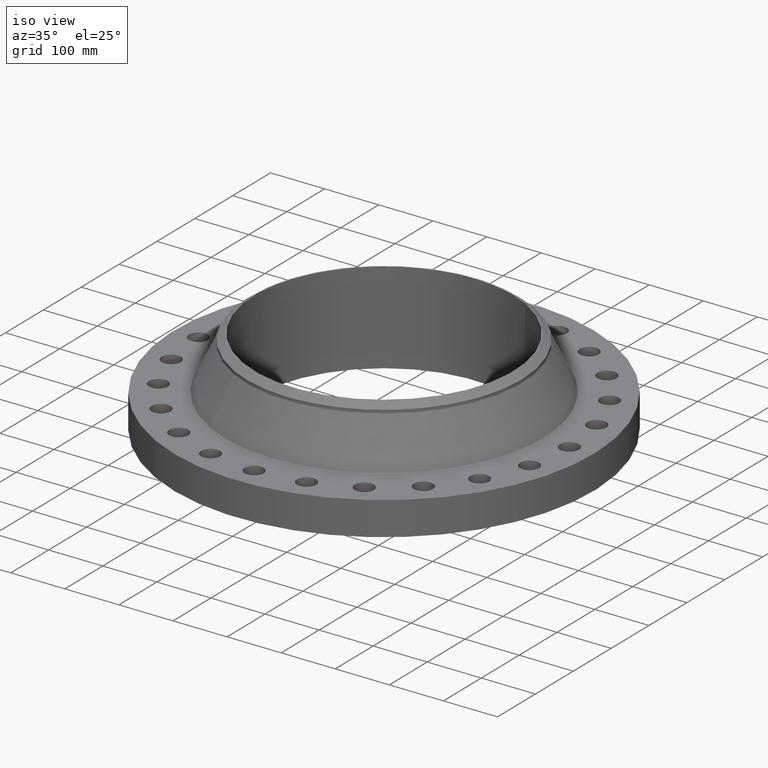
[diagram: clean part render]
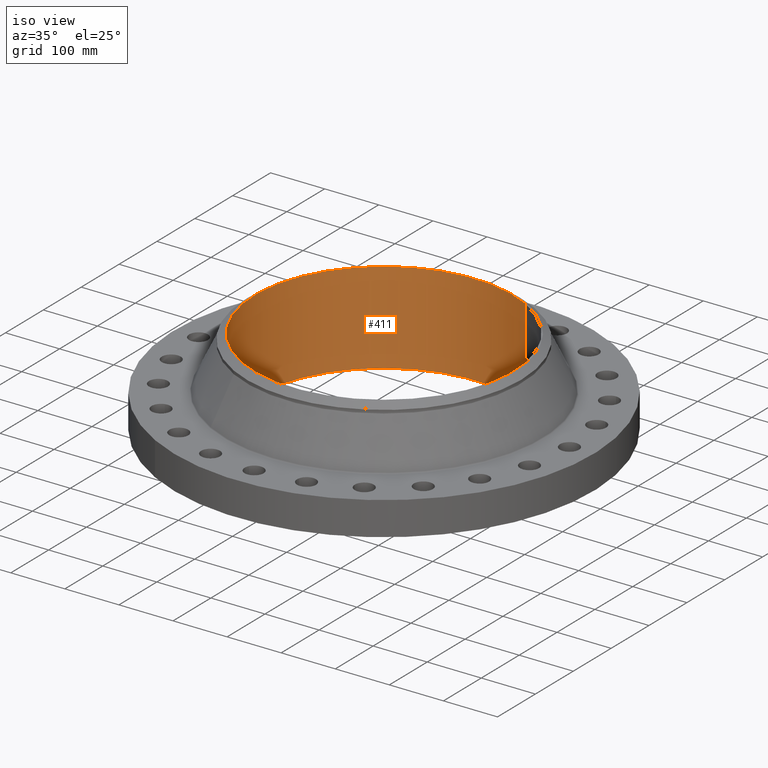
[diagram: tour spotlight — one face highlighted and labeled with its STEP entity id]
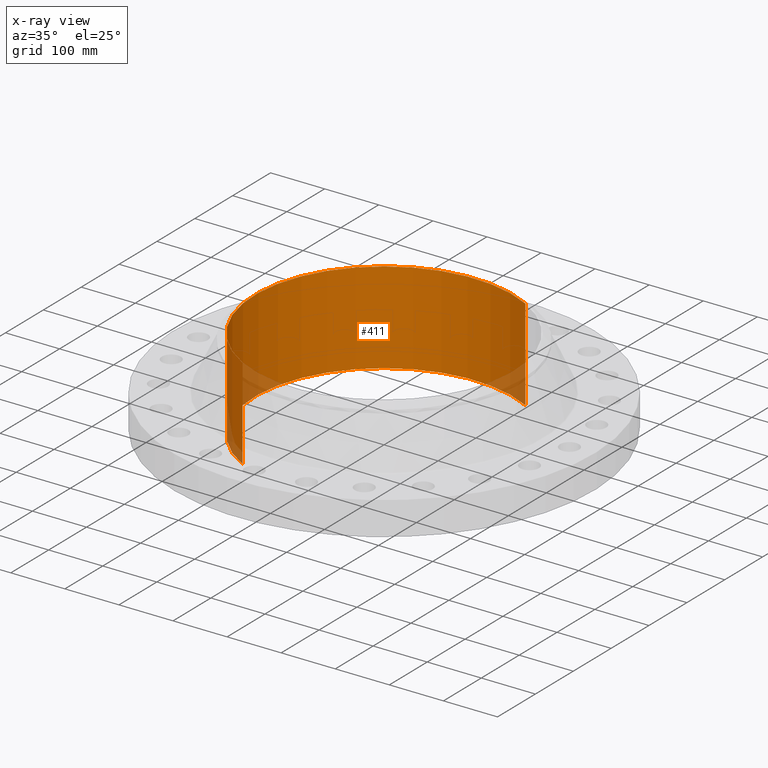
[diagram: x-ray of the same camera — body ghosted, this tour face saturated]
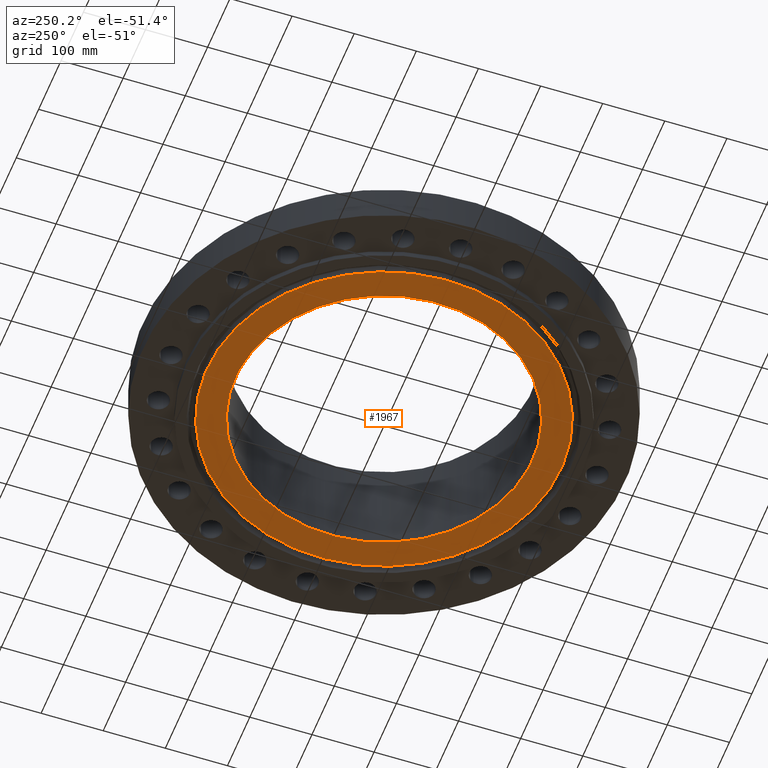
[diagram: tour spotlight — one face highlighted and labeled with its STEP entity id]
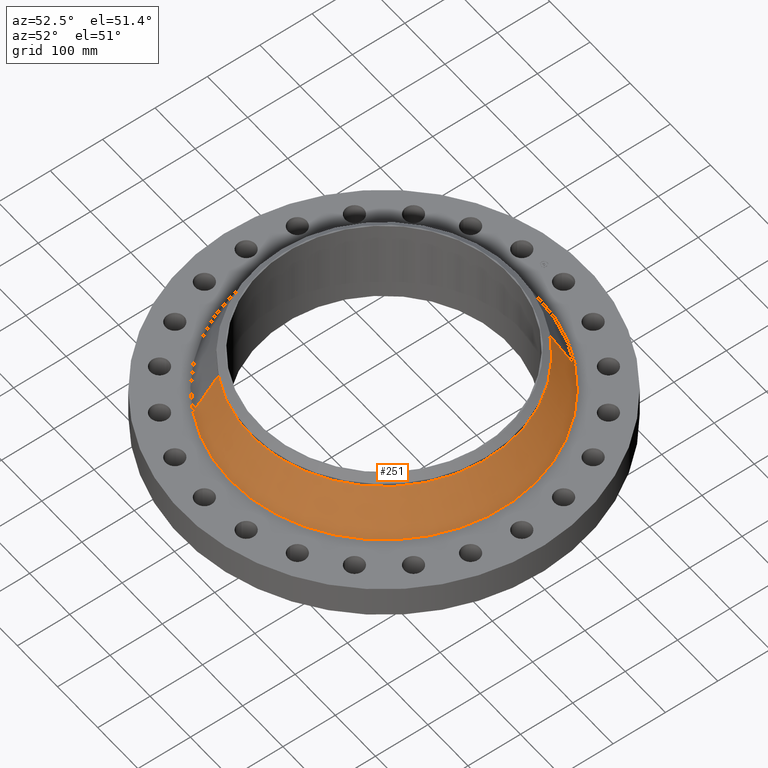
[diagram: tour spotlight — one face highlighted and labeled with its STEP entity id]
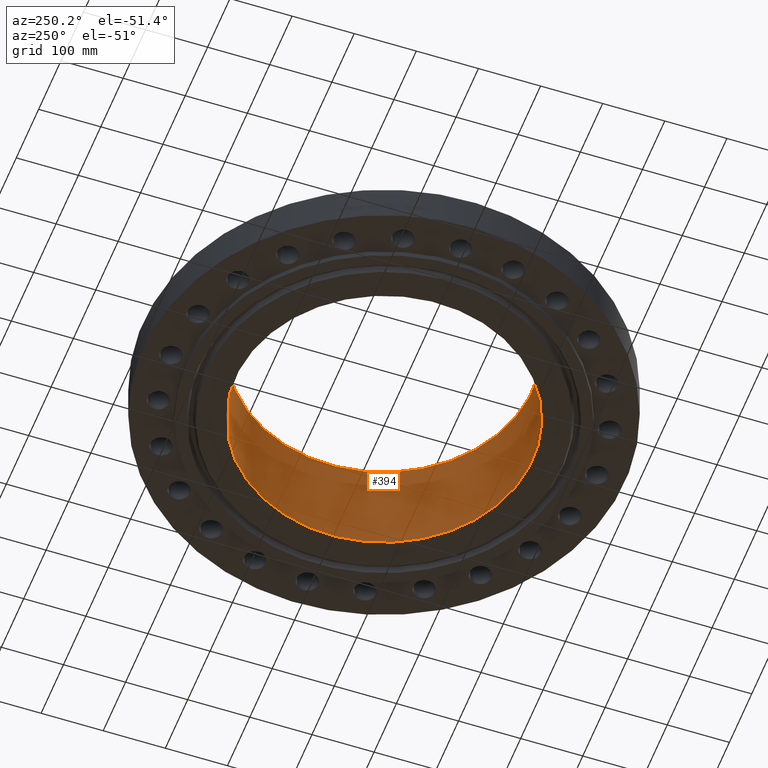
[diagram: tour spotlight — one face highlighted and labeled with its STEP entity id]
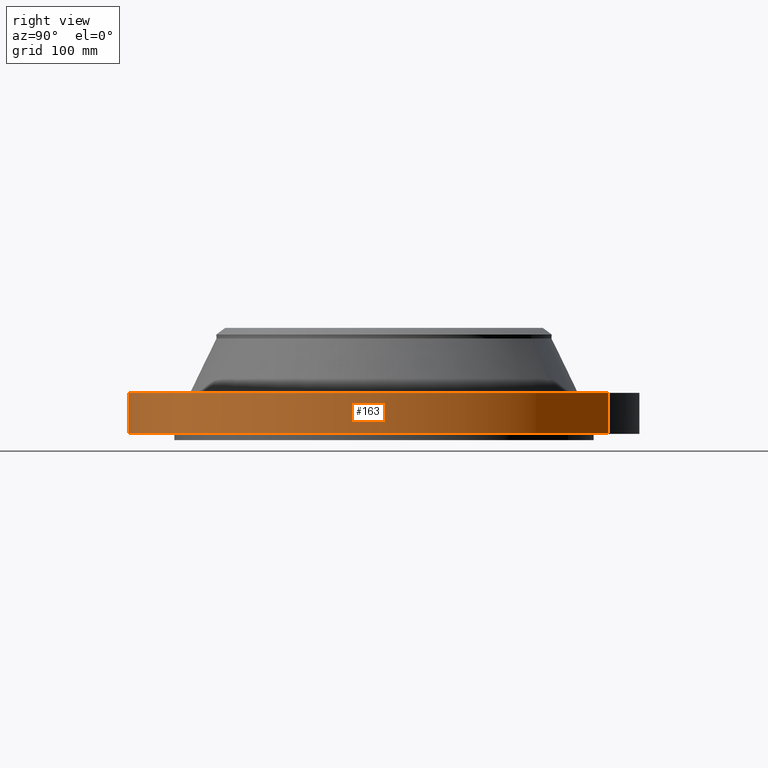
[diagram: tour spotlight — one face highlighted and labeled with its STEP entity id]
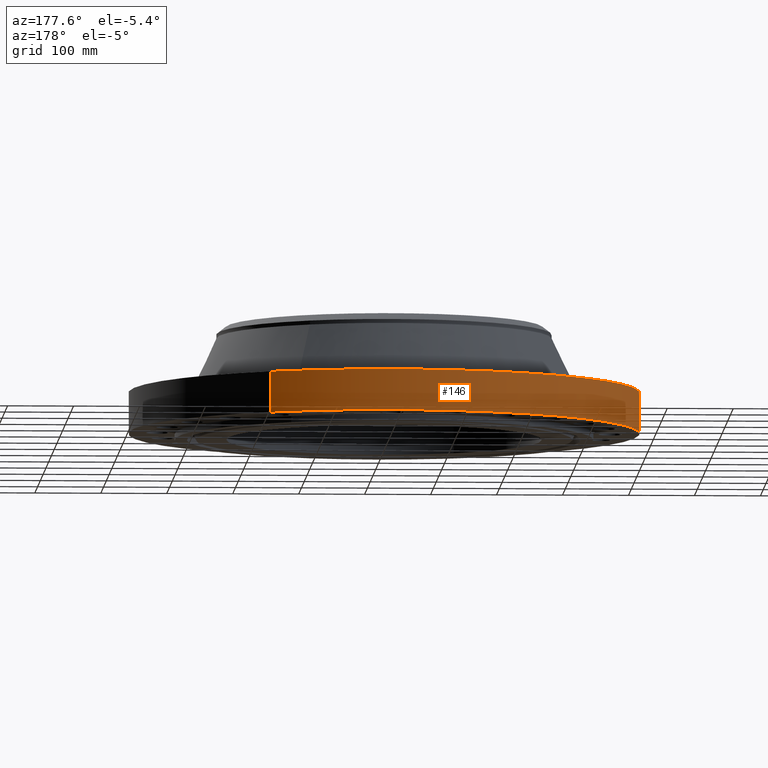
[diagram: tour spotlight — one face highlighted and labeled with its STEP entity id]
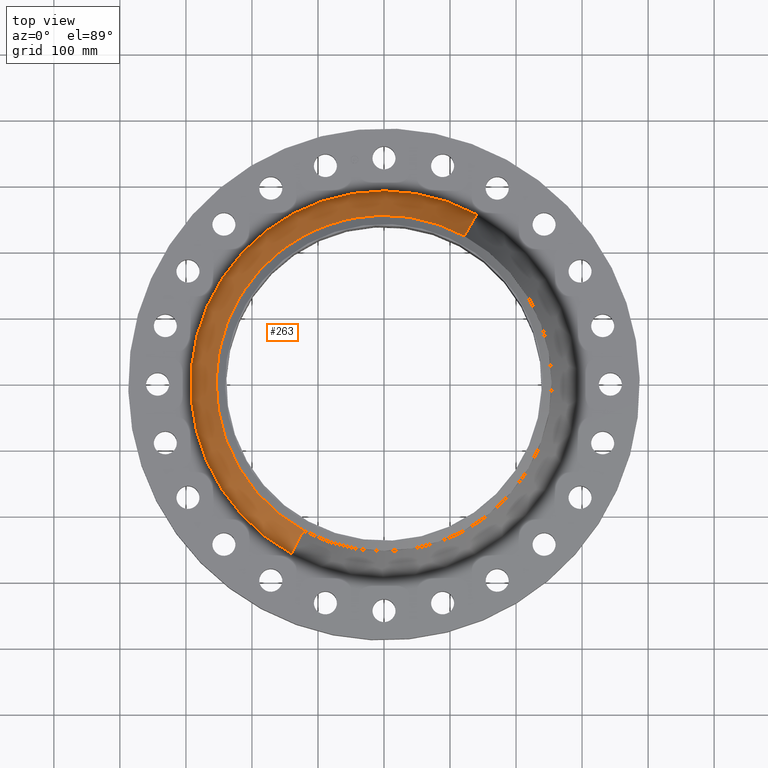
[diagram: tour spotlight — one face highlighted and labeled with its STEP entity id]
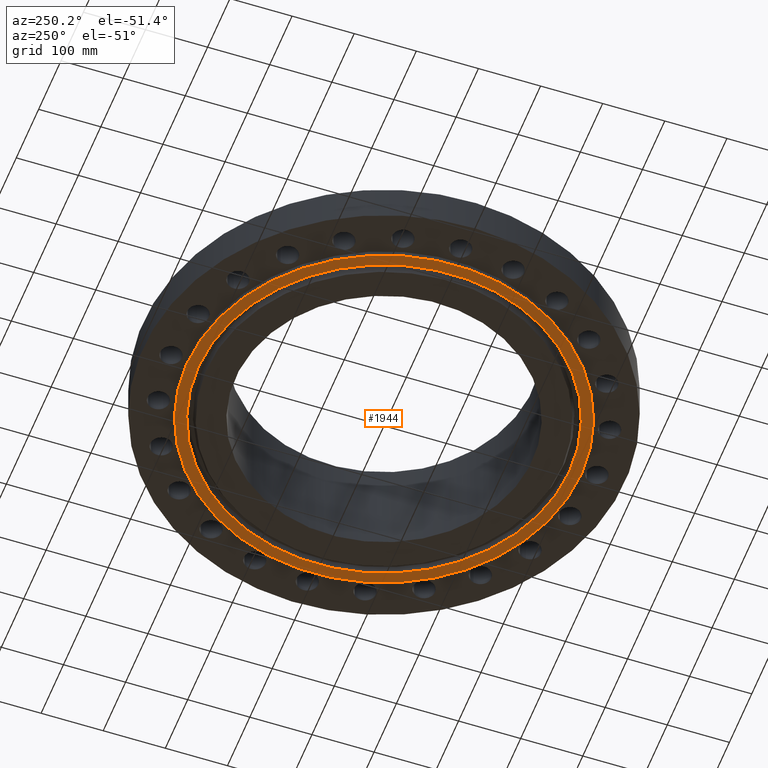
[diagram: tour spotlight — one face highlighted and labeled with its STEP entity id]
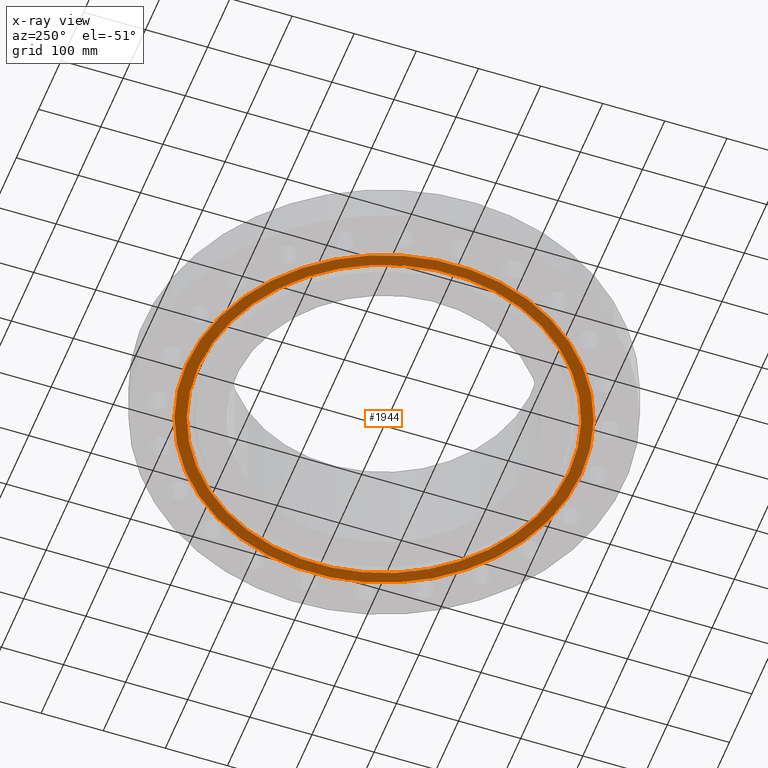
[diagram: x-ray of the same camera — body ghosted, this tour face saturated]
A machine part: a face-by-face anatomy tour. The part has 461 B-rep faces; the first image is the clean iso view, then the 8 largest visible faces are spotlighted one at a time (largest first), each with its STEP entity span.

Face 1 — iso view, entity #411. An x-ray twin of the same camera follows (body ghosted, this face saturated) — the face is partly hidden behind the body. In plain terms, the highlighted cylindrical surface (partial cylindrical patch) has radius 238.912 mm, axis along (0, 0, -1).
Definition (entity closure, byte-faithful):
#358=AXIS2_PLACEMENT_3D('Cylinder Axis2P3D',#355,#356,#357) ;
#397=AXIS2_PLACEMENT_3D('Circle Axis2P3D',#395,#396,$) ;
#402=AXIS2_PLACEMENT_3D('Circle Axis2P3D',#400,#401,$) ;
#355=CARTESIAN_POINT('Axis2P3D Location',(0.,0.,2.97250000001)) ;
#364=CARTESIAN_POINT('Vertex',(4.50947661613,8.25454157717,6.32000000003)) ;
#366=CARTESIAN_POINT('Vertex',(-4.50947661613,-8.25454157717,6.32000000003)) ;
#369=CARTESIAN_POINT('Line Origine',(4.50947661613,8.25454157717,2.97250000001)) ;
#373=CARTESIAN_POINT('Vertex',(4.50947661613,8.25454157717,-0.375000000002)) ;
#380=CARTESIAN_POINT('Vertex',(-4.50947661613,-8.25454157717,-0.375000000002)) ;
#383=CARTESIAN_POINT('Line Origine',(-4.50947661613,-8.25454157717,2.97250000001)) ;
#395=CARTESIAN_POINT('Axis2P3D Location',(0.,0.,6.32000000003)) ;
#400=CARTESIAN_POINT('Axis2P3D Location',(0.,0.,-0.375000000002)) ;
#356=DIRECTION('Axis2P3D Direction',(0.,0.,-0.0393700787402)) ;
#357=DIRECTION('Axis2P3D XDirection',(-0.0188750212049,-0.0345504945626,0.)) ;
#370=DIRECTION('Vector Direction',(0.,0.,-0.0393700787402)) ;
#384=DIRECTION('Vector Direction',(0.,0.,-0.0393700787402)) ;
#396=DIRECTION('Axis2P3D Direction',(0.,0.,-0.0393700787402)) ;
#401=DIRECTION('Axis2P3D Direction',(0.,0.,-0.0393700787402)) ;
#371=VECTOR('Line Direction',#370,0.0393700787402) ;
#385=VECTOR('Line Direction',#384,0.0393700787402) ;
#406=ORIENTED_EDGE('',*,*,#399,.F.) ;
#407=ORIENTED_EDGE('',*,*,#387,.T.) ;
#408=ORIENTED_EDGE('',*,*,#404,.T.) ;
#409=ORIENTED_EDGE('',*,*,#375,.F.) ;
#411=ADVANCED_FACE('PartBody',(#410),#359,.F.) ;
#398=CIRCLE('generated circle',#397,9.40600000004) ;
#403=CIRCLE('generated circle',#402,9.40600000004) ;
#359=CYLINDRICAL_SURFACE('generated cylinder',#358,9.40600000004) ;
#375=EDGE_CURVE('',#365,#374,#372,.T.) ;
#387=EDGE_CURVE('',#367,#381,#386,.T.) ;
#399=EDGE_CURVE('',#367,#365,#398,.T.) ;
#404=EDGE_CURVE('',#381,#374,#403,.T.) ;
#405=EDGE_LOOP('',(#406,#407,#408,#409)) ;
#410=FACE_OUTER_BOUND('',#405,.T.) ;
#372=LINE('Line',#369,#371) ;
#386=LINE('Line',#383,#385) ;
#365=VERTEX_POINT('',#364) ;
#367=VERTEX_POINT('',#366) ;
#374=VERTEX_POINT('',#373) ;
#381=VERTEX_POINT('',#380) ;

Face 2 — auxiliary view, entity #1967. In plain terms, the highlighted planar face has unit normal (0, 0, -1).
Definition (entity closure, byte-faithful):
#378=AXIS2_PLACEMENT_3D('Circle Axis2P3D',#376,#377,$) ;
#402=AXIS2_PLACEMENT_3D('Circle Axis2P3D',#400,#401,$) ;
#1920=AXIS2_PLACEMENT_3D('Plane Axis2P3D',#1917,#1918,#1919) ;
#1947=AXIS2_PLACEMENT_3D('Circle Axis2P3D',#1945,#1946,$) ;
#1956=AXIS2_PLACEMENT_3D('Circle Axis2P3D',#1954,#1955,$) ;
#373=CARTESIAN_POINT('Vertex',(4.50947661613,8.25454157717,-0.375000000002)) ;
#376=CARTESIAN_POINT('Axis2P3D Location',(0.,0.,-0.375000000002)) ;
#380=CARTESIAN_POINT('Vertex',(-4.50947661613,-8.25454157717,-0.375000000002)) ;
#400=CARTESIAN_POINT('Axis2P3D Location',(0.,0.,-0.375000000002)) ;
#1917=CARTESIAN_POINT('Axis2P3D Location',(0.,9.40600000004,-0.375000000001)) ;
#1945=CARTESIAN_POINT('Axis2P3D Location',(0.,0.,-0.375000000001)) ;
#1949=CARTESIAN_POINT('Vertex',(-5.38610621347,9.8592012916,-0.375000000001)) ;
#1951=CARTESIAN_POINT('Vertex',(5.38610621347,-9.8592012916,-0.375000000001)) ;
#1954=CARTESIAN_POINT('Axis2P3D Location',(0.,1.1189649382E-015,-0.375000000001)) ;
#377=DIRECTION('Axis2P3D Direction',(0.,0.,-0.0393700787402)) ;
#401=DIRECTION('Axis2P3D Direction',(0.,0.,-0.0393700787402)) ;
#1918=DIRECTION('Axis2P3D Direction',(0.,0.,-0.0393700787402)) ;
#1919=DIRECTION('Axis2P3D XDirection',(0.0393700787402,0.,0.)) ;
#1946=DIRECTION('Axis2P3D Direction',(0.,0.,-0.0393700787402)) ;
#1955=DIRECTION('Axis2P3D Direction',(0.,0.,-0.0393700787402)) ;
#1960=ORIENTED_EDGE('',*,*,#1953,.T.) ;
#1961=ORIENTED_EDGE('',*,*,#1958,.T.) ;
#1964=ORIENTED_EDGE('',*,*,#382,.F.) ;
#1965=ORIENTED_EDGE('',*,*,#404,.F.) ;
#1966=FACE_BOUND('',#1963,.T.) ;
#1967=ADVANCED_FACE('PartBody',(#1962,#1966),#1921,.T.) ;
#379=CIRCLE('generated circle',#378,9.40600000004) ;
#403=CIRCLE('generated circle',#402,9.40600000004) ;
#1948=CIRCLE('generated circle',#1947,11.2345) ;
#1957=CIRCLE('generated circle',#1956,11.2345) ;
#382=EDGE_CURVE('',#374,#381,#379,.T.) ;
#404=EDGE_CURVE('',#381,#374,#403,.T.) ;
#1953=EDGE_CURVE('',#1950,#1952,#1948,.T.) ;
#1958=EDGE_CURVE('',#1952,#1950,#1957,.T.) ;
#1959=EDGE_LOOP('',(#1960,#1961)) ;
#1963=EDGE_LOOP('',(#1964,#1965)) ;
#1962=FACE_OUTER_BOUND('',#1959,.T.) ;
#1921=PLANE('',#1920) ;
#374=VERTEX_POINT('',#373) ;
#381=VERTEX_POINT('',#380) ;
#1950=VERTEX_POINT('',#1949) ;
#1952=VERTEX_POINT('',#1951) ;

Face 3 — auxiliary view, entity #251. In plain terms, the highlighted conical surface has half-angle 25.652 deg.
Definition (entity closure, byte-faithful):
#187=AXIS2_PLACEMENT_3D('Circle Axis2P3D',#185,#186,$) ;
#224=AXIS2_PLACEMENT_3D('Cone Axis2P3D',#221,#222,#223) ;
#235=AXIS2_PLACEMENT_3D('Circle Axis2P3D',#233,#234,$) ;
#182=CARTESIAN_POINT('Vertex',(5.52649122712,10.1161743354,2.50805157486)) ;
#185=CARTESIAN_POINT('Axis2P3D Location',(0.,0.,2.50805157486)) ;
#189=CARTESIAN_POINT('Vertex',(-5.52649122712,-10.1161743354,2.50805157486)) ;
#221=CARTESIAN_POINT('Axis2P3D Location',(0.,0.,5.6884067446)) ;
#226=CARTESIAN_POINT('Line Origine',(5.16037330659,9.44599997717,4.09822915973)) ;
#230=CARTESIAN_POINT('Vertex',(4.79425538606,8.77582561894,5.6884067446)) ;
#233=CARTESIAN_POINT('Axis2P3D Location',(0.,0.,5.6884067446)) ;
#237=CARTESIAN_POINT('Vertex',(-4.79425538606,-8.77582561894,5.6884067446)) ;
#240=CARTESIAN_POINT('Line Origine',(-5.16037330659,-9.44599997717,4.09822915973)) ;
#186=DIRECTION('Axis2P3D Direction',(0.,0.,-0.0393700787402)) ;
#222=DIRECTION('Axis2P3D Direction',(0.,0.,-0.0393700787402)) ;
#223=DIRECTION('Axis2P3D XDirection',(-0.0188750212049,-0.0345504945626,0.)) ;
#227=DIRECTION('Vector Direction',(0.00817106355171,0.0149570315047,-0.0354897735835)) ;
#234=DIRECTION('Axis2P3D Direction',(0.,0.,-0.0393700787402)) ;
#241=DIRECTION('Vector Direction',(-0.00817106355171,-0.0149570315047,-0.0354897735835)) ;
#228=VECTOR('Line Direction',#227,0.0393700787402) ;
#242=VECTOR('Line Direction',#241,0.0393700787402) ;
#246=ORIENTED_EDGE('',*,*,#191,.F.) ;
#247=ORIENTED_EDGE('',*,*,#232,.T.) ;
#248=ORIENTED_EDGE('',*,*,#239,.T.) ;
#249=ORIENTED_EDGE('',*,*,#244,.F.) ;
#251=ADVANCED_FACE('PartBody',(#250),#225,.T.) ;
#188=CIRCLE('generated circle',#187,11.5273192229) ;
#236=CIRCLE('generated circle',#235,10.) ;
#225=CONICAL_SURFACE('Cone',#224,10.,0.447711299411) ;
#191=EDGE_CURVE('',#183,#190,#188,.T.) ;
#232=EDGE_CURVE('',#183,#231,#229,.F.) ;
#239=EDGE_CURVE('',#231,#238,#236,.T.) ;
#244=EDGE_CURVE('',#190,#238,#243,.F.) ;
#245=EDGE_LOOP('',(#246,#247,#248,#249)) ;
#250=FACE_OUTER_BOUND('',#245,.T.) ;
#229=LINE('Line',#226,#228) ;
#243=LINE('Line',#240,#242) ;
#183=VERTEX_POINT('',#182) ;
#190=VERTEX_POINT('',#189) ;
#231=VERTEX_POINT('',#230) ;
#238=VERTEX_POINT('',#237) ;

Face 4 — auxiliary view, entity #394. In plain terms, the highlighted cylindrical surface (partial cylindrical patch) has radius 238.912 mm, axis along (0, 0, -1).
Definition (entity closure, byte-faithful):
#358=AXIS2_PLACEMENT_3D('Cylinder Axis2P3D',#355,#356,#357) ;
#362=AXIS2_PLACEMENT_3D('Circle Axis2P3D',#360,#361,$) ;
#378=AXIS2_PLACEMENT_3D('Circle Axis2P3D',#376,#377,$) ;
#355=CARTESIAN_POINT('Axis2P3D Location',(0.,0.,2.97250000001)) ;
#360=CARTESIAN_POINT('Axis2P3D Location',(0.,0.,6.32000000003)) ;
#364=CARTESIAN_POINT('Vertex',(4.50947661613,8.25454157717,6.32000000003)) ;
#366=CARTESIAN_POINT('Vertex',(-4.50947661613,-8.25454157717,6.32000000003)) ;
#369=CARTESIAN_POINT('Line Origine',(4.50947661613,8.25454157717,2.97250000001)) ;
#373=CARTESIAN_POINT('Vertex',(4.50947661613,8.25454157717,-0.375000000002)) ;
#376=CARTESIAN_POINT('Axis2P3D Location',(0.,0.,-0.375000000002)) ;
#380=CARTESIAN_POINT('Vertex',(-4.50947661613,-8.25454157717,-0.375000000002)) ;
#383=CARTESIAN_POINT('Line Origine',(-4.50947661613,-8.25454157717,2.97250000001)) ;
#356=DIRECTION('Axis2P3D Direction',(0.,0.,-0.0393700787402)) ;
#357=DIRECTION('Axis2P3D XDirection',(-0.0188750212049,-0.0345504945626,0.)) ;
#361=DIRECTION('Axis2P3D Direction',(0.,0.,-0.0393700787402)) ;
#370=DIRECTION('Vector Direction',(0.,0.,-0.0393700787402)) ;
#377=DIRECTION('Axis2P3D Direction',(0.,0.,-0.0393700787402)) ;
#384=DIRECTION('Vector Direction',(0.,0.,-0.0393700787402)) ;
#371=VECTOR('Line Direction',#370,0.0393700787402) ;
#385=VECTOR('Line Direction',#384,0.0393700787402) ;
#389=ORIENTED_EDGE('',*,*,#368,.F.) ;
#390=ORIENTED_EDGE('',*,*,#375,.T.) ;
#391=ORIENTED_EDGE('',*,*,#382,.T.) ;
#392=ORIENTED_EDGE('',*,*,#387,.F.) ;
#394=ADVANCED_FACE('PartBody',(#393),#359,.F.) ;
#363=CIRCLE('generated circle',#362,9.40600000004) ;
#379=CIRCLE('generated circle',#378,9.40600000004) ;
#359=CYLINDRICAL_SURFACE('generated cylinder',#358,9.40600000004) ;
#368=EDGE_CURVE('',#365,#367,#363,.T.) ;
#375=EDGE_CURVE('',#365,#374,#372,.T.) ;
#382=EDGE_CURVE('',#374,#381,#379,.T.) ;
#387=EDGE_CURVE('',#367,#381,#386,.T.) ;
#388=EDGE_LOOP('',(#389,#390,#391,#392)) ;
#393=FACE_OUTER_BOUND('',#388,.T.) ;
#372=LINE('Line',#369,#371) ;
#386=LINE('Line',#383,#385) ;
#365=VERTEX_POINT('',#364) ;
#367=VERTEX_POINT('',#366) ;
#374=VERTEX_POINT('',#373) ;
#381=VERTEX_POINT('',#380) ;

Face 5 — right view, entity #163. In plain terms, the highlighted cylindrical surface (partial cylindrical patch) has radius 387.35 mm, axis along (0, 0, -1).
Definition (entity closure, byte-faithful):
#110=AXIS2_PLACEMENT_3D('Cylinder Axis2P3D',#107,#108,#109) ;
#149=AXIS2_PLACEMENT_3D('Circle Axis2P3D',#147,#148,$) ;
#154=AXIS2_PLACEMENT_3D('Circle Axis2P3D',#152,#153,$) ;
#107=CARTESIAN_POINT('Axis2P3D Location',(0.,0.,2.97250000001)) ;
#116=CARTESIAN_POINT('Vertex',(-7.31123946374,-13.3831340689,1.67844740731E-015)) ;
#118=CARTESIAN_POINT('Vertex',(7.31123946374,13.3831340689,1.67844740731E-015)) ;
#121=CARTESIAN_POINT('Line Origine',(-7.31123946374,-13.3831340689,1.22)) ;
#125=CARTESIAN_POINT('Vertex',(-7.31123946374,-13.3831340689,2.44000000001)) ;
#132=CARTESIAN_POINT('Vertex',(7.31123946374,13.3831340689,2.44000000001)) ;
#135=CARTESIAN_POINT('Line Origine',(7.31123946374,13.3831340689,1.22)) ;
#147=CARTESIAN_POINT('Axis2P3D Location',(0.,0.,1.67844740731E-015)) ;
#152=CARTESIAN_POINT('Axis2P3D Location',(0.,0.,2.44000000001)) ;
#108=DIRECTION('Axis2P3D Direction',(0.,0.,-0.0393700787402)) ;
#109=DIRECTION('Axis2P3D XDirection',(0.0188750212049,0.0345504945626,0.)) ;
#122=DIRECTION('Vector Direction',(0.,0.,-0.0393700787402)) ;
#136=DIRECTION('Vector Direction',(0.,0.,-0.0393700787402)) ;
#148=DIRECTION('Axis2P3D Direction',(0.,0.,-0.0393700787402)) ;
#153=DIRECTION('Axis2P3D Direction',(0.,0.,-0.0393700787402)) ;
#123=VECTOR('Line Direction',#122,0.0393700787402) ;
#137=VECTOR('Line Direction',#136,0.0393700787402) ;
#158=ORIENTED_EDGE('',*,*,#151,.F.) ;
#159=ORIENTED_EDGE('',*,*,#139,.T.) ;
#160=ORIENTED_EDGE('',*,*,#156,.T.) ;
#161=ORIENTED_EDGE('',*,*,#127,.F.) ;
#163=ADVANCED_FACE('PartBody',(#162),#111,.T.) ;
#150=CIRCLE('generated circle',#149,15.2500000001) ;
#155=CIRCLE('generated circle',#154,15.2500000001) ;
#111=CYLINDRICAL_SURFACE('generated cylinder',#110,15.2500000001) ;
#127=EDGE_CURVE('',#117,#126,#124,.F.) ;
#139=EDGE_CURVE('',#119,#133,#138,.F.) ;
#151=EDGE_CURVE('',#119,#117,#150,.T.) ;
#156=EDGE_CURVE('',#133,#126,#155,.T.) ;
#157=EDGE_LOOP('',(#158,#159,#160,#161)) ;
#162=FACE_OUTER_BOUND('',#157,.T.) ;
#124=LINE('Line',#121,#123) ;
#138=LINE('Line',#135,#137) ;
#117=VERTEX_POINT('',#116) ;
#119=VERTEX_POINT('',#118) ;
#126=VERTEX_POINT('',#125) ;
#133=VERTEX_POINT('',#132) ;

Face 6 — auxiliary view, entity #146. In plain terms, the highlighted cylindrical surface (partial cylindrical patch) has radius 387.35 mm, axis along (0, 0, -1).
Definition (entity closure, byte-faithful):
#110=AXIS2_PLACEMENT_3D('Cylinder Axis2P3D',#107,#108,#109) ;
#114=AXIS2_PLACEMENT_3D('Circle Axis2P3D',#112,#113,$) ;
#130=AXIS2_PLACEMENT_3D('Circle Axis2P3D',#128,#129,$) ;
#107=CARTESIAN_POINT('Axis2P3D Location',(0.,0.,2.97250000001)) ;
#112=CARTESIAN_POINT('Axis2P3D Location',(0.,0.,1.67844740731E-015)) ;
#116=CARTESIAN_POINT('Vertex',(-7.31123946374,-13.3831340689,1.67844740731E-015)) ;
#118=CARTESIAN_POINT('Vertex',(7.31123946374,13.3831340689,1.67844740731E-015)) ;
#121=CARTESIAN_POINT('Line Origine',(-7.31123946374,-13.3831340689,1.22)) ;
#125=CARTESIAN_POINT('Vertex',(-7.31123946374,-13.3831340689,2.44000000001)) ;
#128=CARTESIAN_POINT('Axis2P3D Location',(0.,0.,2.44000000001)) ;
#132=CARTESIAN_POINT('Vertex',(7.31123946374,13.3831340689,2.44000000001)) ;
#135=CARTESIAN_POINT('Line Origine',(7.31123946374,13.3831340689,1.22)) ;
#108=DIRECTION('Axis2P3D Direction',(0.,0.,-0.0393700787402)) ;
#109=DIRECTION('Axis2P3D XDirection',(0.0188750212049,0.0345504945626,0.)) ;
#113=DIRECTION('Axis2P3D Direction',(0.,0.,-0.0393700787402)) ;
#122=DIRECTION('Vector Direction',(0.,0.,-0.0393700787402)) ;
#129=DIRECTION('Axis2P3D Direction',(0.,0.,-0.0393700787402)) ;
#136=DIRECTION('Vector Direction',(0.,0.,-0.0393700787402)) ;
#123=VECTOR('Line Direction',#122,0.0393700787402) ;
#137=VECTOR('Line Direction',#136,0.0393700787402) ;
#141=ORIENTED_EDGE('',*,*,#120,.F.) ;
#142=ORIENTED_EDGE('',*,*,#127,.T.) ;
#143=ORIENTED_EDGE('',*,*,#134,.T.) ;
#144=ORIENTED_EDGE('',*,*,#139,.F.) ;
#146=ADVANCED_FACE('PartBody',(#145),#111,.T.) ;
#115=CIRCLE('generated circle',#114,15.2500000001) ;
#131=CIRCLE('generated circle',#130,15.2500000001) ;
#111=CYLINDRICAL_SURFACE('generated cylinder',#110,15.2500000001) ;
#120=EDGE_CURVE('',#117,#119,#115,.T.) ;
#127=EDGE_CURVE('',#117,#126,#124,.F.) ;
#134=EDGE_CURVE('',#126,#133,#131,.T.) ;
#139=EDGE_CURVE('',#119,#133,#138,.F.) ;
#140=EDGE_LOOP('',(#141,#142,#143,#144)) ;
#145=FACE_OUTER_BOUND('',#140,.T.) ;
#124=LINE('Line',#121,#123) ;
#138=LINE('Line',#135,#137) ;
#117=VERTEX_POINT('',#116) ;
#119=VERTEX_POINT('',#118) ;
#126=VERTEX_POINT('',#125) ;
#133=VERTEX_POINT('',#132) ;

Face 7 — top view, entity #263. In plain terms, the highlighted conical surface has half-angle 25.652 deg.
Definition (entity closure, byte-faithful):
#211=AXIS2_PLACEMENT_3D('Circle Axis2P3D',#209,#210,$) ;
#224=AXIS2_PLACEMENT_3D('Cone Axis2P3D',#221,#222,#223) ;
#254=AXIS2_PLACEMENT_3D('Circle Axis2P3D',#252,#253,$) ;
#182=CARTESIAN_POINT('Vertex',(5.52649122712,10.1161743354,2.50805157486)) ;
#189=CARTESIAN_POINT('Vertex',(-5.52649122712,-10.1161743354,2.50805157486)) ;
#209=CARTESIAN_POINT('Axis2P3D Location',(0.,0.,2.50805157486)) ;
#221=CARTESIAN_POINT('Axis2P3D Location',(0.,0.,5.6884067446)) ;
#226=CARTESIAN_POINT('Line Origine',(5.16037330659,9.44599997717,4.09822915973)) ;
#230=CARTESIAN_POINT('Vertex',(4.79425538606,8.77582561894,5.6884067446)) ;
#237=CARTESIAN_POINT('Vertex',(-4.79425538606,-8.77582561894,5.6884067446)) ;
#240=CARTESIAN_POINT('Line Origine',(-5.16037330659,-9.44599997717,4.09822915973)) ;
#252=CARTESIAN_POINT('Axis2P3D Location',(0.,0.,5.6884067446)) ;
#210=DIRECTION('Axis2P3D Direction',(0.,0.,-0.0393700787402)) ;
#222=DIRECTION('Axis2P3D Direction',(0.,0.,-0.0393700787402)) ;
#223=DIRECTION('Axis2P3D XDirection',(-0.0188750212049,-0.0345504945626,0.)) ;
#227=DIRECTION('Vector Direction',(0.00817106355171,0.0149570315047,-0.0354897735835)) ;
#241=DIRECTION('Vector Direction',(-0.00817106355171,-0.0149570315047,-0.0354897735835)) ;
#253=DIRECTION('Axis2P3D Direction',(0.,0.,-0.0393700787402)) ;
#228=VECTOR('Line Direction',#227,0.0393700787402) ;
#242=VECTOR('Line Direction',#241,0.0393700787402) ;
#258=ORIENTED_EDGE('',*,*,#213,.F.) ;
#259=ORIENTED_EDGE('',*,*,#244,.T.) ;
#260=ORIENTED_EDGE('',*,*,#256,.T.) ;
#261=ORIENTED_EDGE('',*,*,#232,.F.) ;
#263=ADVANCED_FACE('PartBody',(#262),#225,.T.) ;
#212=CIRCLE('generated circle',#211,11.5273192229) ;
#255=CIRCLE('generated circle',#254,10.) ;
#225=CONICAL_SURFACE('Cone',#224,10.,0.447711299411) ;
#213=EDGE_CURVE('',#190,#183,#212,.T.) ;
#232=EDGE_CURVE('',#183,#231,#229,.F.) ;
#244=EDGE_CURVE('',#190,#238,#243,.F.) ;
#256=EDGE_CURVE('',#238,#231,#255,.T.) ;
#257=EDGE_LOOP('',(#258,#259,#260,#261)) ;
#262=FACE_OUTER_BOUND('',#257,.T.) ;
#229=LINE('Line',#226,#228) ;
#243=LINE('Line',#240,#242) ;
#183=VERTEX_POINT('',#182) ;
#190=VERTEX_POINT('',#189) ;
#231=VERTEX_POINT('',#230) ;
#238=VERTEX_POINT('',#237) ;

Face 8 — auxiliary view, entity #1944. An x-ray twin of the same camera follows (body ghosted, this face saturated) — the face is partly hidden behind the body. In plain terms, the highlighted planar face has unit normal (0, 0, -1).
Definition (entity closure, byte-faithful):
#446=AXIS2_PLACEMENT_3D('Circle Axis2P3D',#444,#445,$) ;
#481=AXIS2_PLACEMENT_3D('Circle Axis2P3D',#479,#480,$) ;
#1920=AXIS2_PLACEMENT_3D('Plane Axis2P3D',#1917,#1918,#1919) ;
#1928=AXIS2_PLACEMENT_3D('Circle Axis2P3D',#1926,#1927,$) ;
#1937=AXIS2_PLACEMENT_3D('Circle Axis2P3D',#1935,#1936,$) ;
#444=CARTESIAN_POINT('Axis2P3D Location',(0.,0.,-0.375000000002)) ;
#448=CARTESIAN_POINT('Vertex',(-5.99281923258,-10.9697820237,-0.375000000002)) ;
#450=CARTESIAN_POINT('Vertex',(5.99281923258,10.9697820237,-0.375000000002)) ;
#479=CARTESIAN_POINT('Axis2P3D Location',(0.,0.,-0.375000000002)) ;
#1917=CARTESIAN_POINT('Axis2P3D Location',(0.,9.40600000004,-0.375000000001)) ;
#1926=CARTESIAN_POINT('Axis2P3D Location',(-5.59482469102E-016,0.,-0.375000000001)) ;
#1930=CARTESIAN_POINT('Vertex',(5.64068117447,-10.325197632,-0.375000000001)) ;
#1932=CARTESIAN_POINT('Vertex',(-5.64068117447,10.325197632,-0.375000000001)) ;
#1935=CARTESIAN_POINT('Axis2P3D Location',(8.39223703654E-016,-1.1189649382E-015,-0.375000000001)) ;
#445=DIRECTION('Axis2P3D Direction',(0.,0.,-0.0393700787402)) ;
#480=DIRECTION('Axis2P3D Direction',(0.,0.,-0.0393700787402)) ;
#1918=DIRECTION('Axis2P3D Direction',(0.,0.,-0.0393700787402)) ;
#1919=DIRECTION('Axis2P3D XDirection',(0.0393700787402,0.,0.)) ;
#1927=DIRECTION('Axis2P3D Direction',(0.,0.,-0.0393700787402)) ;
#1936=DIRECTION('Axis2P3D Direction',(0.,0.,-0.0393700787402)) ;
#1923=ORIENTED_EDGE('',*,*,#452,.T.) ;
#1924=ORIENTED_EDGE('',*,*,#483,.T.) ;
#1941=ORIENTED_EDGE('',*,*,#1934,.F.) ;
#1942=ORIENTED_EDGE('',*,*,#1939,.F.) ;
#1943=FACE_BOUND('',#1940,.T.) ;
#1944=ADVANCED_FACE('PartBody',(#1925,#1943),#1921,.T.) ;
#447=CIRCLE('generated circle',#446,12.5000000001) ;
#482=CIRCLE('generated circle',#481,12.5000000001) ;
#1929=CIRCLE('generated circle',#1928,11.7655) ;
#1938=CIRCLE('generated circle',#1937,11.7655) ;
#452=EDGE_CURVE('',#449,#451,#447,.T.) ;
#483=EDGE_CURVE('',#451,#449,#482,.T.) ;
#1934=EDGE_CURVE('',#1931,#1933,#1929,.T.) ;
#1939=EDGE_CURVE('',#1933,#1931,#1938,.T.) ;
#1922=EDGE_LOOP('',(#1923,#1924)) ;
#1940=EDGE_LOOP('',(#1941,#1942)) ;
#1925=FACE_OUTER_BOUND('',#1922,.T.) ;
#1921=PLANE('',#1920) ;
#449=VERTEX_POINT('',#448) ;
#451=VERTEX_POINT('',#450) ;
#1931=VERTEX_POINT('',#1930) ;
#1933=VERTEX_POINT('',#1932) ;